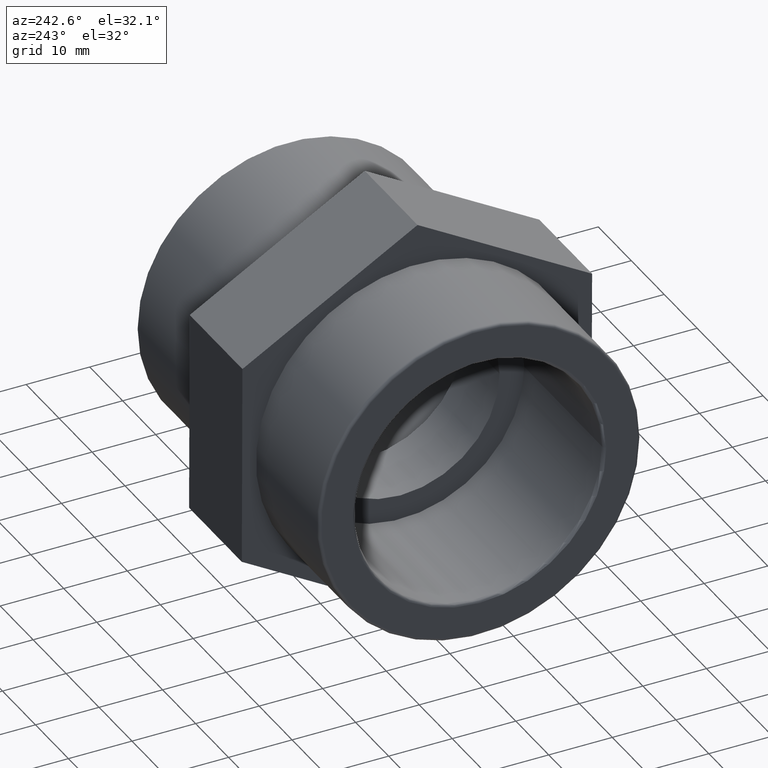
[diagram: clean part render]
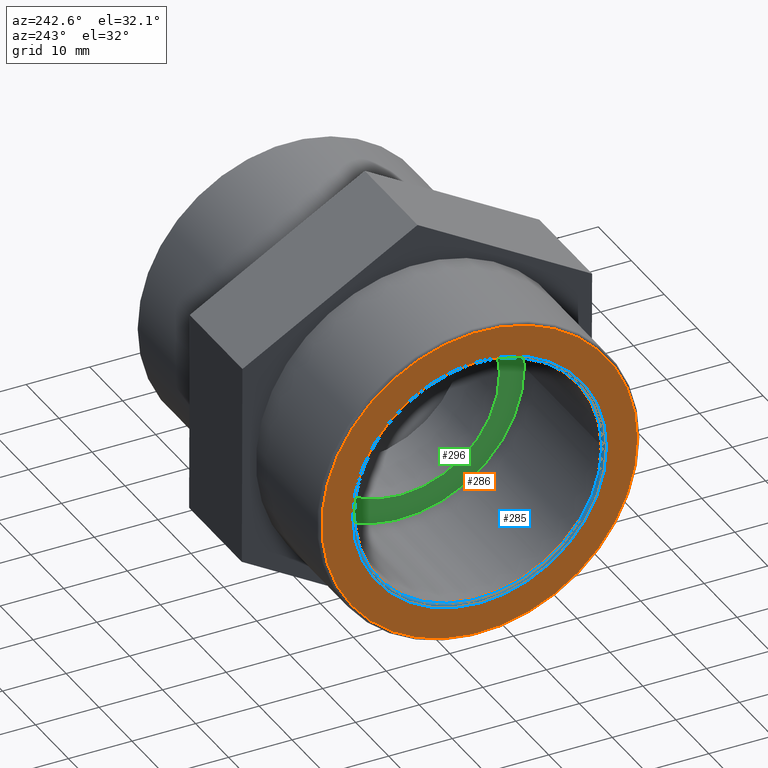
[diagram: same view with three faces highlighted in distinct colors, each labeled with its STEP entity id]
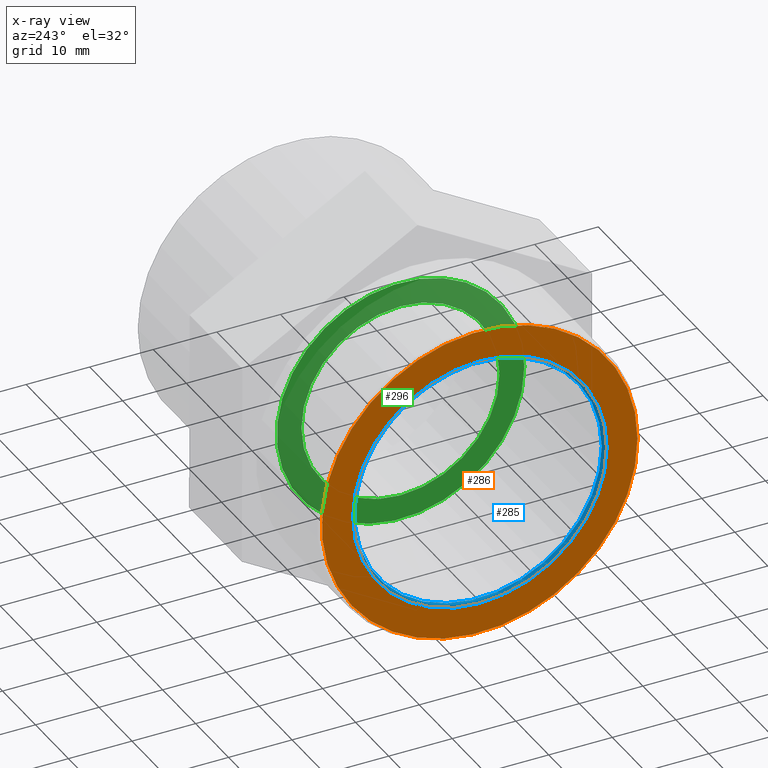
[diagram: x-ray of the same camera — body ghosted, the three highlighted faces saturated]
A machine part, auxiliary view with three faces highlighted in distinct colors.
The next image is the same camera in x-ray (body ghosted, the three faces saturated) — at least one of them is partly hidden behind the body in this view.
Their STEP definitions:

[orange] entity #286 — the highlighted planar face has unit normal (-1, -0, 0).
#57=PLANE('',#317);
#74=FACE_BOUND('',#117,.T.);
#89=FACE_OUTER_BOUND('',#116,.T.);
#116=EDGE_LOOP('',(#224));
#117=EDGE_LOOP('',(#225));
#146=CIRCLE('',#315,19.95403);
#148=CIRCLE('',#318,24.84077);
#160=VERTEX_POINT('',#447);
#162=VERTEX_POINT('',#452);
#186=EDGE_CURVE('',#160,#160,#146,.T.);
#188=EDGE_CURVE('',#162,#162,#148,.T.);
#224=ORIENTED_EDGE('',*,*,#188,.F.);
#225=ORIENTED_EDGE('',*,*,#186,.F.);
#286=ADVANCED_FACE('',(#89,#74),#57,.T.);
#315=AXIS2_PLACEMENT_3D('',#448,#364,#365);
#317=AXIS2_PLACEMENT_3D('',#451,#368,#369);
#318=AXIS2_PLACEMENT_3D('',#453,#370,#371);
#364=DIRECTION('center_axis',(-1.,-1.83697019872103E-16,0.));
#365=DIRECTION('ref_axis',(-1.83697019872103E-16,1.,6.12323399573677E-17));
#368=DIRECTION('center_axis',(-1.,-1.83697019872103E-16,0.));
#369=DIRECTION('ref_axis',(0.,0.,1.));
#370=DIRECTION('center_axis',(1.,1.83697019872103E-16,0.));
#371=DIRECTION('ref_axis',(-1.83697019872103E-16,1.,6.12323399573677E-17));
#447=CARTESIAN_POINT('',(-29.,-19.95403,1.22183194847951E-15));
#448=CARTESIAN_POINT('Origin',(-29.,-2.77333911991762E-31,0.));
#451=CARTESIAN_POINT('Origin',(-29.,-19.476,0.));
#452=CARTESIAN_POINT('',(-29.,-24.84077,-4.56317542032834E-15));
#453=CARTESIAN_POINT('Origin',(-29.,-2.77333911991762E-31,0.));

[blue] entity #285 — the highlighted toroidal blend (fillet) surface has major radius 19.954 mm and minor (blend) radius 0.478 mm.
#73=FACE_BOUND('',#115,.T.);
#88=FACE_OUTER_BOUND('',#114,.T.);
#114=EDGE_LOOP('',(#222));
#115=EDGE_LOOP('',(#223));
#146=CIRCLE('',#315,19.95403);
#147=CIRCLE('',#316,19.476);
#160=VERTEX_POINT('',#447);
#161=VERTEX_POINT('',#449);
#186=EDGE_CURVE('',#160,#160,#146,.T.);
#187=EDGE_CURVE('',#161,#161,#147,.T.);
#222=ORIENTED_EDGE('',*,*,#186,.T.);
#223=ORIENTED_EDGE('',*,*,#187,.T.);
#278=TOROIDAL_SURFACE('',#314,19.95403,0.47803);
#285=ADVANCED_FACE('',(#88,#73),#278,.T.);
#314=AXIS2_PLACEMENT_3D('',#446,#362,#363);
#315=AXIS2_PLACEMENT_3D('',#448,#364,#365);
#316=AXIS2_PLACEMENT_3D('',#450,#366,#367);
#362=DIRECTION('center_axis',(-1.,-1.83697019872103E-16,0.));
#363=DIRECTION('ref_axis',(0.,0.,1.));
#364=DIRECTION('center_axis',(-1.,-1.83697019872103E-16,0.));
#365=DIRECTION('ref_axis',(-1.83697019872103E-16,1.,6.12323399573677E-17));
#366=DIRECTION('center_axis',(1.,1.83697019872103E-16,0.));
#367=DIRECTION('ref_axis',(-1.85265189465586E-16,1.,6.12323399573677E-17));
#446=CARTESIAN_POINT('Origin',(-28.52197,8.7812686409461E-17,0.));
#447=CARTESIAN_POINT('',(-29.,-19.95403,1.22183194847951E-15));
#448=CARTESIAN_POINT('Origin',(-29.,-2.77333911991762E-31,0.));
#449=CARTESIAN_POINT('',(-28.52197,-19.476,-3.57768315902908E-15));
#450=CARTESIAN_POINT('Origin',(-28.52197,8.7812686409461E-17,0.));

[green] entity #296 — the highlighted planar face has unit normal (-1, -0, 0).
#64=PLANE('',#331);
#78=FACE_BOUND('',#131,.T.);
#99=FACE_OUTER_BOUND('',#130,.T.);
#130=EDGE_LOOP('',(#256));
#131=EDGE_LOOP('',(#257));
#149=CIRCLE('',#320,19.476);
#152=CIRCLE('',#332,15.5808);
#163=VERTEX_POINT('',#455);
#178=VERTEX_POINT('',#500);
#189=EDGE_CURVE('',#163,#163,#149,.T.);
#210=EDGE_CURVE('',#178,#178,#152,.T.);
#256=ORIENTED_EDGE('',*,*,#189,.T.);
#257=ORIENTED_EDGE('',*,*,#210,.F.);
#296=ADVANCED_FACE('',(#99,#78),#64,.T.);
#320=AXIS2_PLACEMENT_3D('',#456,#374,#375);
#331=AXIS2_PLACEMENT_3D('',#499,#414,#415);
#332=AXIS2_PLACEMENT_3D('',#501,#416,#417);
#374=DIRECTION('center_axis',(-1.,-1.83697019872103E-16,0.));
#375=DIRECTION('ref_axis',(0.,0.,1.));
#414=DIRECTION('center_axis',(-1.,-1.83697019872103E-16,0.));
#415=DIRECTION('ref_axis',(0.,0.,1.));
#416=DIRECTION('center_axis',(-1.,-1.83697019872103E-16,0.));
#417=DIRECTION('ref_axis',(0.,0.,1.));
#455=CARTESIAN_POINT('',(-5.,-19.476,0.));
#456=CARTESIAN_POINT('Origin',(-5.,4.40872847693047E-15,0.));
#499=CARTESIAN_POINT('Origin',(-5.,-15.5808,0.));
#500=CARTESIAN_POINT('',(-5.,-15.5808,0.));
#501=CARTESIAN_POINT('Origin',(-5.,4.40872847693047E-15,0.));